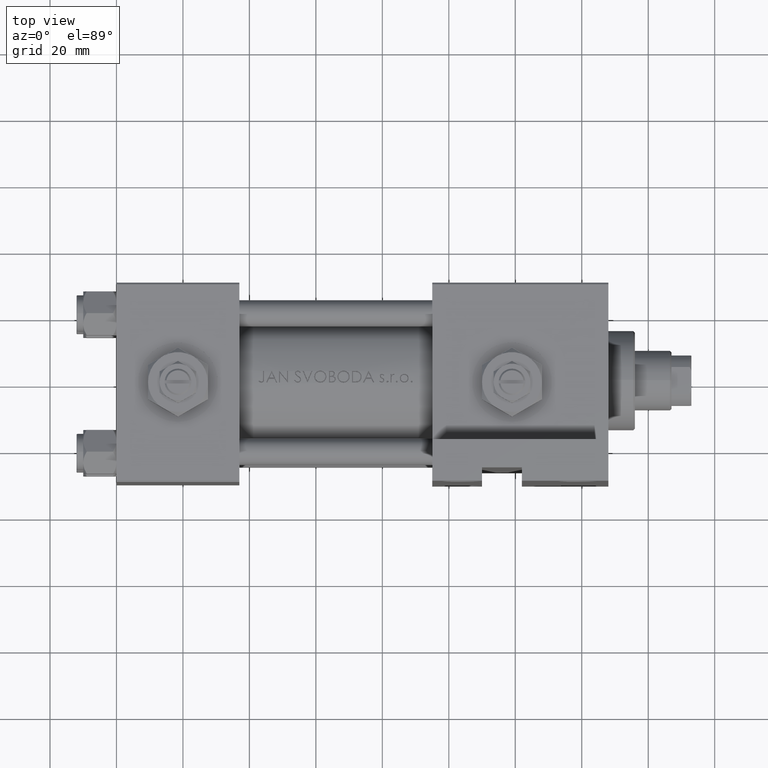
[diagram: clean part render]
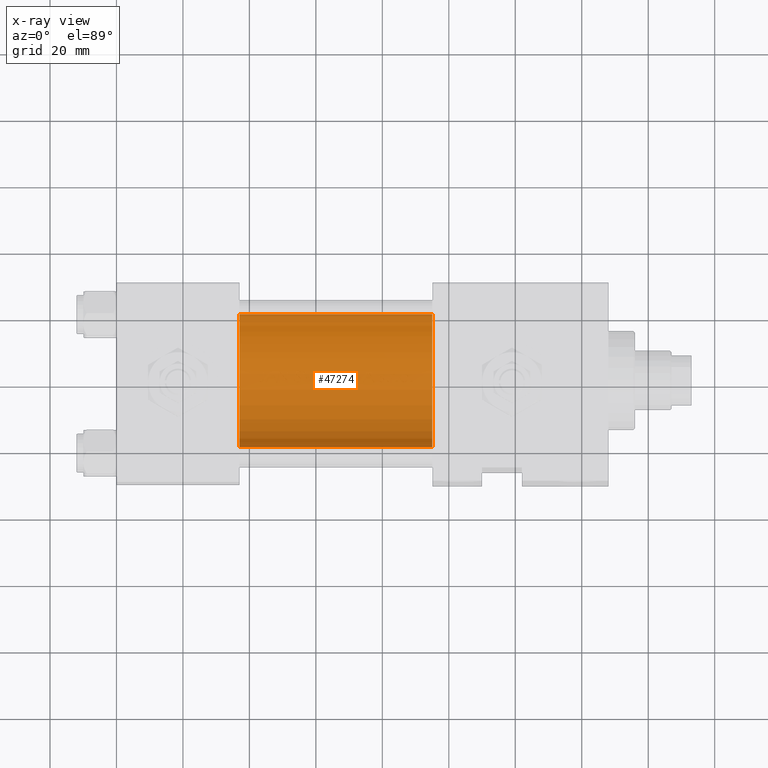
[diagram: x-ray — body ghosted, one internal face saturated and labeled with its STEP entity id]
A machine part, top view, then the same camera in x-ray: the body is ghosted and one INTERNAL B-rep face — a face not visible from any outside direction — is saturated and labeled: STEP entity #47274.
In plain terms, the highlighted cylindrical surface (partial cylindrical patch) has radius 20 mm, axis along (-1, -0, 0).
Its self-contained STEP definition (entity closure, byte-faithful):
#618 = CARTESIAN_POINT ( 'NONE',  ( 95.00000000000000000, -1.224646799147354686E-16, 21.00000000000000000 ) ) ;
#3737 = EDGE_LOOP ( 'NONE', ( #35846, #36872, #32977, #40726 ) ) ;
#4388 = AXIS2_PLACEMENT_3D ( 'NONE', #32973, #17586, #40420 ) ;
#5912 = FACE_OUTER_BOUND ( 'NONE', #3737, .T. ) ;
#6154 = CARTESIAN_POINT ( 'NONE',  ( 95.00000000000000000, -1.224646799147354686E-16, 1.000000000000000888 ) ) ;
#6442 = AXIS2_PLACEMENT_3D ( 'NONE', #17595, #41678, #22175 ) ;
#7439 = CARTESIAN_POINT ( 'NONE',  ( 95.00000000000000000, -1.224646799147354686E-16, 21.00000000000000000 ) ) ;
#7649 = DIRECTION ( 'NONE',  ( -1.000000000000000000, -0.000000000000000000, -0.000000000000000000 ) ) ;
#8684 = VECTOR ( 'NONE', #7649, 1000.000000000000000 ) ;
#11756 = LINE ( 'NONE', #31525, #8684 ) ;
#13859 = DIRECTION ( 'NONE',  ( 0.000000000000000000, 0.000000000000000000, 1.000000000000000000 ) ) ;
#13882 = AXIS2_PLACEMENT_3D ( 'NONE', #6154, #17722, #13859 ) ;
#13933 = CARTESIAN_POINT ( 'NONE',  ( 37.00000000000000000, 2.326828918379970576E-15, -19.00000000000000000 ) ) ;
#14023 = VERTEX_POINT ( 'NONE', #618 ) ;
#14727 = VECTOR ( 'NONE', #46967, 1000.000000000000000 ) ;
#16827 = CARTESIAN_POINT ( 'NONE',  ( 95.00000000000000000, 2.326828918379970576E-15, -19.00000000000000000 ) ) ;
#17586 = DIRECTION ( 'NONE',  ( 1.000000000000000000, 0.000000000000000000, 0.000000000000000000 ) ) ;
#17595 = CARTESIAN_POINT ( 'NONE',  ( 37.00000000000000000, -1.224646799147354686E-16, 1.000000000000000888 ) ) ;
#17722 = DIRECTION ( 'NONE',  ( -1.000000000000000000, -0.000000000000000000, -0.000000000000000000 ) ) ;
#17825 = EDGE_CURVE ( 'NONE', #14023, #40259, #50806, .T. ) ;
#21184 = CIRCLE ( 'NONE', #6442, 20.00000000000000000 ) ;
#21806 = CYLINDRICAL_SURFACE ( 'NONE', #13882, 20.00000000000000000 ) ;
#22175 = DIRECTION ( 'NONE',  ( 0.000000000000000000, 0.000000000000000000, -1.000000000000000000 ) ) ;
#29646 = EDGE_CURVE ( 'NONE', #40197, #14023, #34709, .T. ) ;
#31525 = CARTESIAN_POINT ( 'NONE',  ( 95.00000000000000000, 2.326828918379970576E-15, -19.00000000000000000 ) ) ;
#31546 = CARTESIAN_POINT ( 'NONE',  ( 37.00000000000000000, -1.224646799147354686E-16, 21.00000000000000000 ) ) ;
#32973 = CARTESIAN_POINT ( 'NONE',  ( 95.00000000000000000, -1.224646799147354686E-16, 1.000000000000000888 ) ) ;
#32977 = ORIENTED_EDGE ( 'NONE', *, *, #17825, .T. ) ;
#34709 = CIRCLE ( 'NONE', #4388, 20.00000000000000000 ) ;
#35846 = ORIENTED_EDGE ( 'NONE', *, *, #39261, .F. ) ;
#36872 = ORIENTED_EDGE ( 'NONE', *, *, #29646, .T. ) ;
#39261 = EDGE_CURVE ( 'NONE', #40197, #49154, #11756, .T. ) ;
#40197 = VERTEX_POINT ( 'NONE', #16827 ) ;
#40259 = VERTEX_POINT ( 'NONE', #31546 ) ;
#40420 = DIRECTION ( 'NONE',  ( 0.000000000000000000, 0.000000000000000000, -1.000000000000000000 ) ) ;
#40726 = ORIENTED_EDGE ( 'NONE', *, *, #45739, .F. ) ;
#41678 = DIRECTION ( 'NONE',  ( 1.000000000000000000, 0.000000000000000000, 0.000000000000000000 ) ) ;
#45739 = EDGE_CURVE ( 'NONE', #49154, #40259, #21184, .T. ) ;
#46967 = DIRECTION ( 'NONE',  ( -1.000000000000000000, -0.000000000000000000, -0.000000000000000000 ) ) ;
#47274 = ADVANCED_FACE ( 'NONE', ( #5912 ), #21806, .F. ) ;
#49154 = VERTEX_POINT ( 'NONE', #13933 ) ;
#50806 = LINE ( 'NONE', #7439, #14727 ) ;